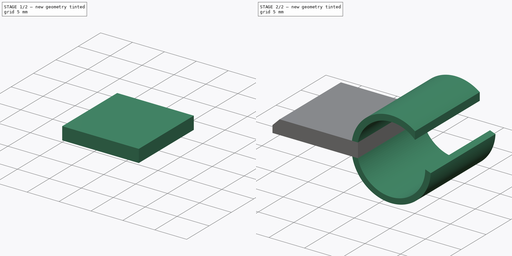
[diagram: build sequence overview — one tinted view per stage of 2, left to right]
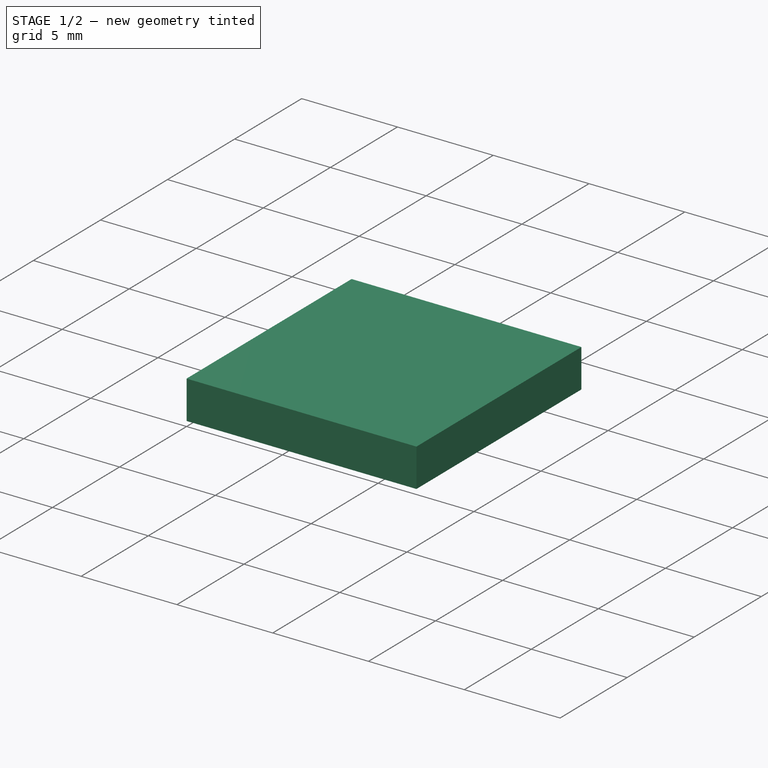
[diagram: stage 1 of 2 — iso view after this stage's code; geometry added in this stage tinted green]
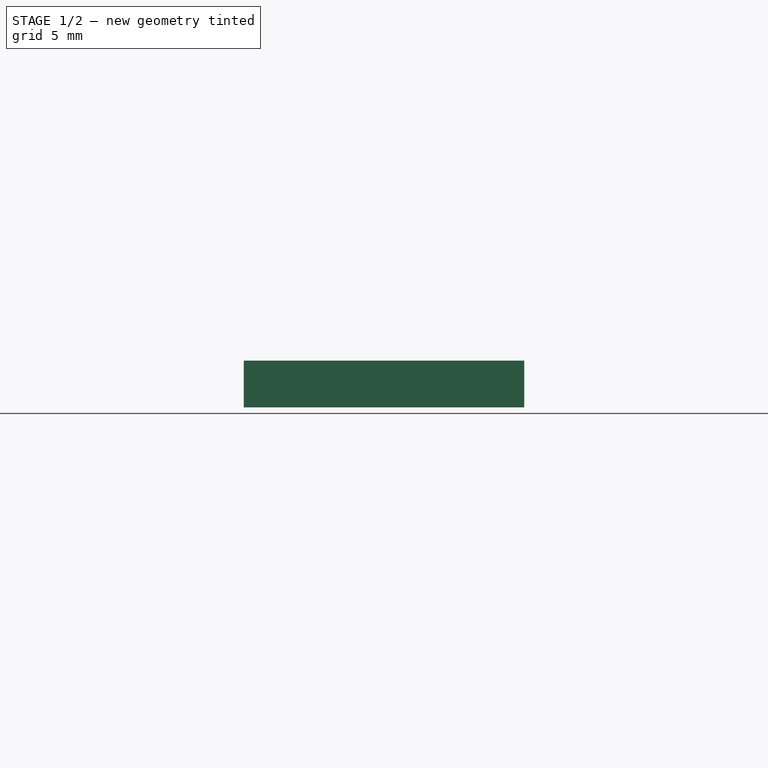
[diagram: stage 1 of 2 — front view after this stage's code; geometry added in this stage tinted green]
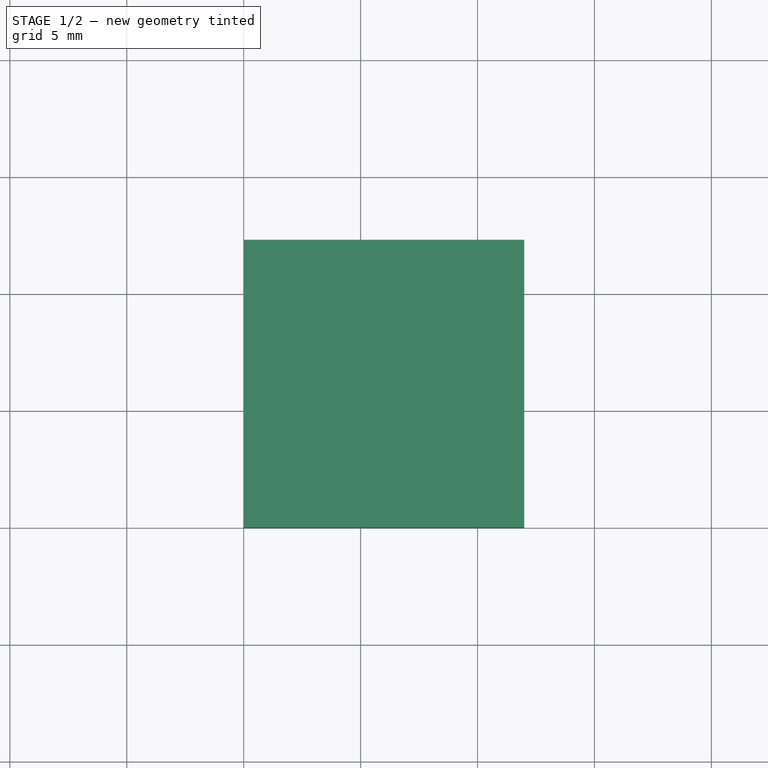
[diagram: stage 1 of 2 — top view after this stage's code; geometry added in this stage tinted green]
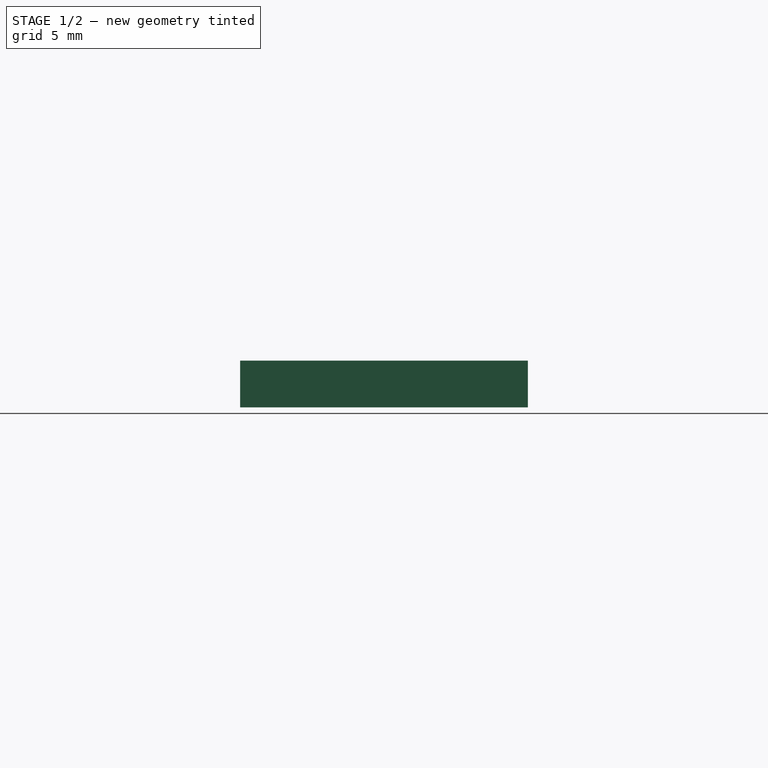
[diagram: stage 1 of 2 — right view after this stage's code; geometry added in this stage tinted green]
FCSTD DOCUMENT  (FreeCAD 0.19R24267 +99 (Git))
Label: PencilRack
License: All rights reserved
LicenseURL: http://en.wikipedia.org/wiki/All_rights_reserved
objects: Sketcher::SketchObject×3, PartDesign::Pad×2, PartDesign::Pocket×1, PartDesign::Chamfer×1, PartDesign::Body×1
note: 12 computed .brp shape members not serialized (recipe doc carries the construction recipe); baked Part::Feature solids carry a one-line shape summary decoded from their .brp

FEATURE [Sketcher::SketchObject] Sketch
  FullyConstrained = true
  MapMode = 5
  Support = -> [XY_Plane]
  sketch-geometry (4):
    g0: LineSegment StartX=0 StartY=0 StartZ=0 EndX=12 EndY=0 EndZ=0
    g1: LineSegment StartX=12 StartY=0 StartZ=0 EndX=12 EndY=12.3 EndZ=0
    g2: LineSegment StartX=12 StartY=12.3 StartZ=0 EndX=0 EndY=12.3 EndZ=0
    g3: LineSegment StartX=0 StartY=12.3 StartZ=0 EndX=0 EndY=0 EndZ=0
  constraints (11):
    c: Coincident(g0,g1)
    c: Coincident(g1,g2)
    c: Coincident(g2,g3)
    c: Coincident(g3,g0)
    c: Horizontal(g0)
    c: Horizontal(g2)
    c: Vertical(g1)
    c: Vertical(g3)
    c: Coincident(g0,g-1)
    c: Distance(g1) = 12.3
    c: Distance(g2) = 12
FEATURE [PartDesign::Pad] Pad
  Direction = (1,1,1)
  Length = 2
  Length2 = 100
  Profile = -> Sketch
  Type = 0
FEATURE [Sketcher::SketchObject] Sketch001
  ExternalGeometry = -> [Pad]
  FullyConstrained = true
  MapMode = 5
  Placement = pos=(0,0,0) rot=(1,0,0;3.14159rad)
  Support = -> [Pad]
  sketch-geometry (8):
    g0: LineSegment StartX=5.3 StartY=-1.9 StartZ=0 EndX=7.1 EndY=-1.9 EndZ=0
    g1: LineSegment StartX=7.1 StartY=-1.9 StartZ=0 EndX=7.1 EndY=-4.6 EndZ=0
    g2: LineSegment StartX=7.1 StartY=-4.6 StartZ=0 EndX=5.3 EndY=-4.6 EndZ=0
    g3: LineSegment StartX=5.3 StartY=-4.6 StartZ=0 EndX=5.3 EndY=-1.9 EndZ=0
    g4: LineSegment StartX=5.3 StartY=-7.7 StartZ=0 EndX=7.1 EndY=-7.7 EndZ=0
    g5: LineSegment StartX=7.1 StartY=-7.7 StartZ=0 EndX=7.1 EndY=-10.4 EndZ=0
    g6: LineSegment StartX=7.1 StartY=-10.4 StartZ=0 EndX=5.3 EndY=-10.4 EndZ=0
    g7: LineSegment StartX=5.3 StartY=-10.4 StartZ=0 EndX=5.3 EndY=-7.7 EndZ=0
  constraints (24):
    c: Coincident(g0,g1)
    c: Coincident(g1,g2)
    c: Coincident(g2,g3)
    c: Coincident(g3,g0)
    c: Horizontal(g0)
    c: Horizontal(g2)
    c: Vertical(g1)
    c: Vertical(g3)
    c: Coincident(g4,g5)
    c: Coincident(g5,g6)
    c: Coincident(g6,g7)
    c: Coincident(g7,g4)
    c: Horizontal(g4)
    c: Horizontal(g6)
    c: Vertical(g5)
    c: Vertical(g7)
    c: Distance(g0,g-2) = 5.3
    c: Distance(g0,g-1) = 1.9
    c: Vertical(g2,g4)
    c: Distance(g6,g-3) = 1.9
    c: Distance(g0) = 1.8
    c: Distance(g1) = 2.7
    c: Vertical(g1,g4)
    c: Equal(g1,g5)
FEATURE [PartDesign::Pocket] Pocket
  BaseFeature = -> Pad
  Length = 0.2
  Length2 = 100
  Profile = -> Sketch001
  Type = 0
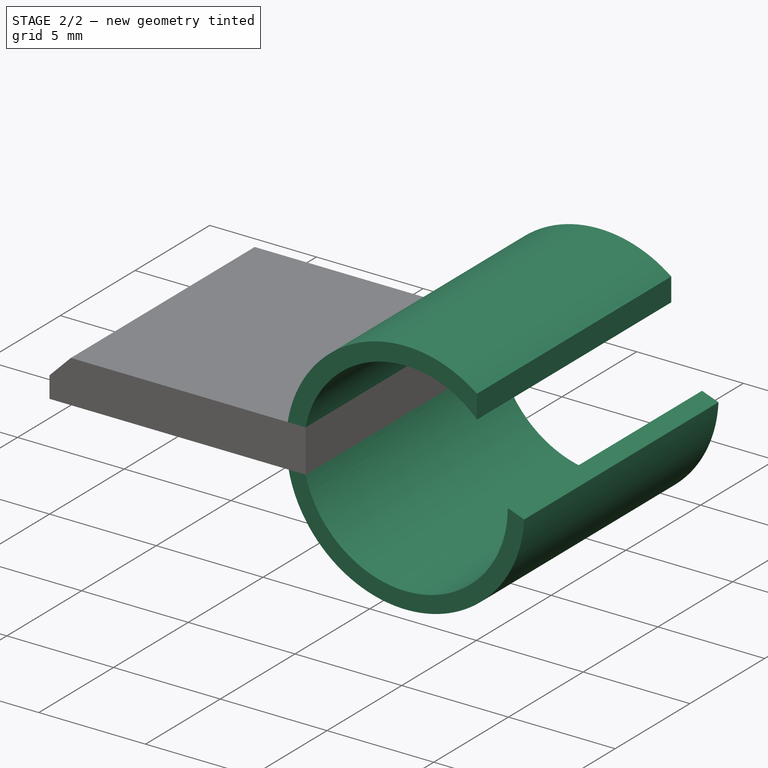
[diagram: stage 2 of 2 — iso view after this stage's code; geometry added in this stage tinted green]
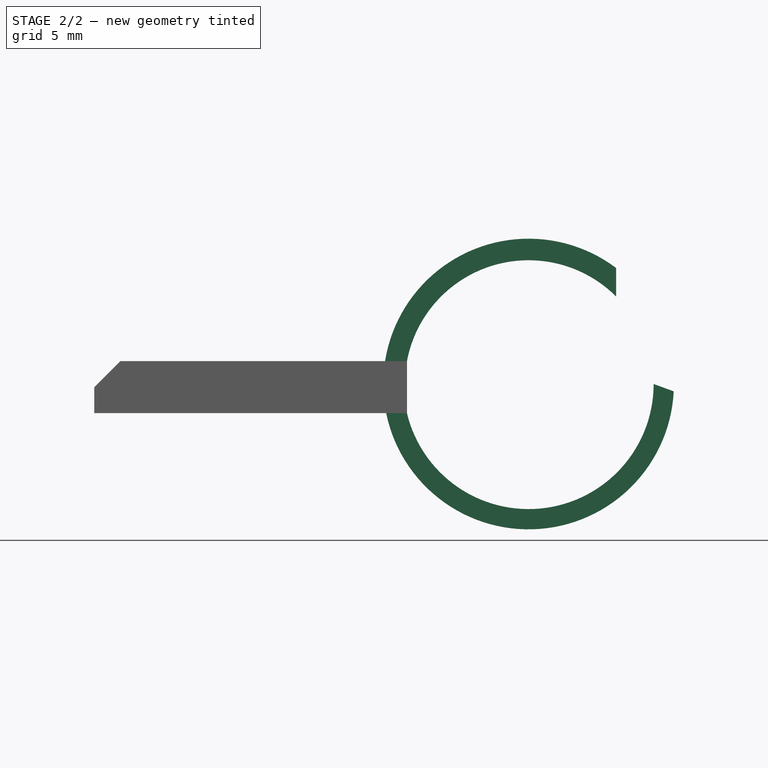
[diagram: stage 2 of 2 — front view after this stage's code; geometry added in this stage tinted green]
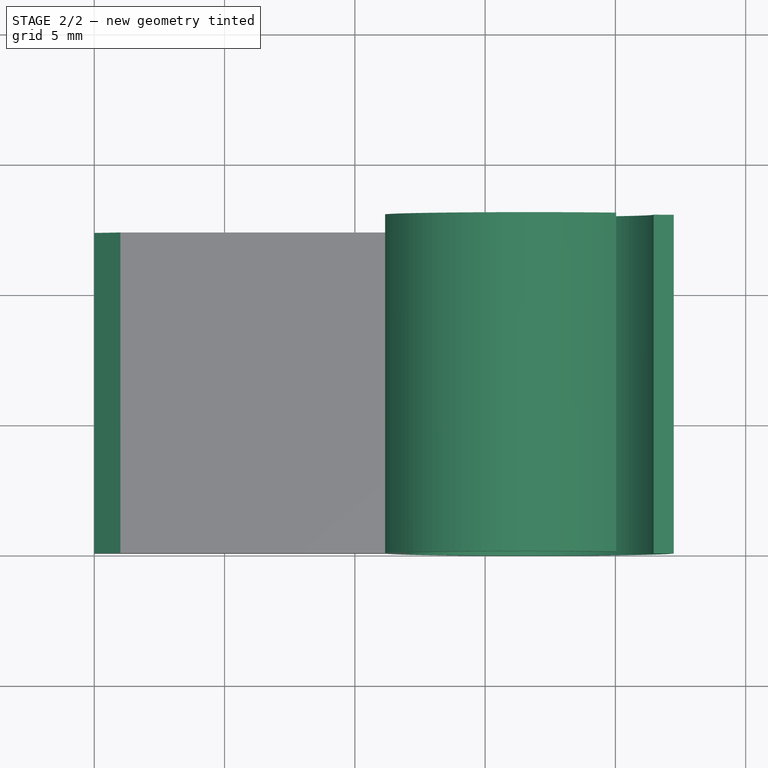
[diagram: stage 2 of 2 — top view after this stage's code; geometry added in this stage tinted green]
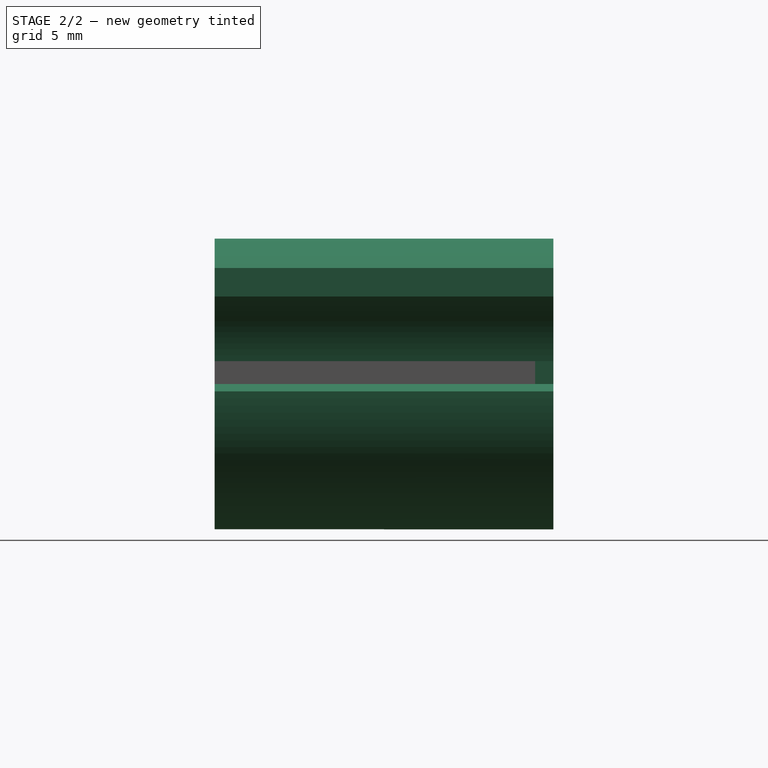
[diagram: stage 2 of 2 — right view after this stage's code; geometry added in this stage tinted green]
FEATURE [Sketcher::SketchObject] Sketch002
  ExternalGeometry = -> [Pocket]
  FullyConstrained = true
  MapMode = 5
  Placement = pos=(0,0,0) rot=(1,0,0;1.5708rad)
  Support = -> [Pocket]
  sketch-geometry (12):
    g0: ArcOfCircle CenterX=16.6677 CenterY=1.11938 CenterZ=0 NormalX=0 NormalY=0 NormalZ=1 AngleXU=0 Radius=5.57761 StartAngle=3.30014 EndAngle=6.23288
    g1: ArcOfCircle CenterX=16.6677 CenterY=1.11938 CenterZ=0 NormalX=0 NormalY=0 NormalZ=1 AngleXU=0 Radius=5.57761 StartAngle=0.924561 EndAngle=2.98304
    g2: ArcOfCircle CenterX=16.6677 CenterY=1.11938 CenterZ=0 NormalX=0 NormalY=0 NormalZ=1 AngleXU=0 Radius=4.8 StartAngle=3.37696 EndAngle=6.28319
    g3: LineSegment StartX=12 StartY=-9e-16 StartZ=0 EndX=16.6677 EndY=1.11938 EndZ=0
    g4: LineSegment StartX=16.6677 StartY=1.11938 StartZ=0 EndX=21.4677 EndY=1.11938 EndZ=0
    g5: LineSegment StartX=21.4677 StartY=1.11938 StartZ=0 EndX=22.2382 EndY=0.838915 EndZ=0
    g6: ArcOfCircle CenterX=16.6677 CenterY=1.11938 CenterZ=0 NormalX=0 NormalY=0 NormalZ=1 AngleXU=0 Radius=4.75 StartAngle=0.785398 EndAngle=2.95512
    g7: LineSegment StartX=12 StartY=2 StartZ=0 EndX=16.6677 EndY=1.11938 EndZ=0
    g8: LineSegment StartX=16.6677 StartY=1.11938 StartZ=0 EndX=20.0264 EndY=4.47813 EndZ=0
    g9: LineSegment StartX=20.0264 StartY=4.47813 StartZ=0 EndX=20.0264 EndY=5.5723 EndZ=0
    g10: LineSegment StartX=11.16 StartY=2 StartZ=0 EndX=11.16 EndY=0.23875 EndZ=0
    g11: LineSegment StartX=12 StartY=2 StartZ=0 EndX=12 EndY=-9e-16 EndZ=0
  constraints (31):
    c: Equal(g0,g1)
    c: Coincident(g0,g1)
    c: Coincident(g2,g0)
    c: Coincident(g3,g0)
    c: Coincident(g4,g0)
    c: Coincident(g4,g2)
    c: Diameter(g2) = 9.6
    c: Coincident(g5,g2)
    c: Coincident(g5,g0)
    c: Coincident(g6,g0)
    c: Coincident(g7,g0)
    c: Coincident(g8,g0)
    c: Coincident(g8,g6)
    c: Coincident(g9,g6)
    c: Coincident(g9,g1)
    c: Angle(g9,g8) = 2.35619
    c: Coincident(g6,g7)
    c: Coincident(g2,g3)
    c: Diameter(g6) = 9.5
    c: Coincident(g6,g-3)
    c: Coincident(g-3,g2)
    c: Horizontal(g4)
    c: Vertical(g9)
    c: Angle(g5,g4,g2) = 0.349066
    c: Coincident(g10,g1)
    c: Coincident(g10,g0)
    c: Vertical(g10)
    c: Coincident(g11,g6)
    c: Coincident(g11,g2)
    c: Distance(g1,g6) = 0.84
    c: Horizontal(g1,g6)
FEATURE [PartDesign::Pad] Pad001
  BaseFeature = -> Pocket
  Direction = (1,1,1)
  Length = 13
  Length2 = 100
  Profile = -> Sketch002
  Reversed = true
  Type = 0
FEATURE [PartDesign::Chamfer] Chamfer
  Angle = 45
  Base = -> Pad001 [Edge20]
  BaseFeature = -> Pad001
  ChamferType = 0
  FlipDirection = false
  Size = 1
  Size2 = 1
  SupportTransform = false
FEATURE [PartDesign::Body] Body
  Group = -> [Sketch,Pad,Sketch001,Pocket,Sketch002,Pad001,Chamfer]
  Origin = -> Origin
  Tip = -> Chamfer
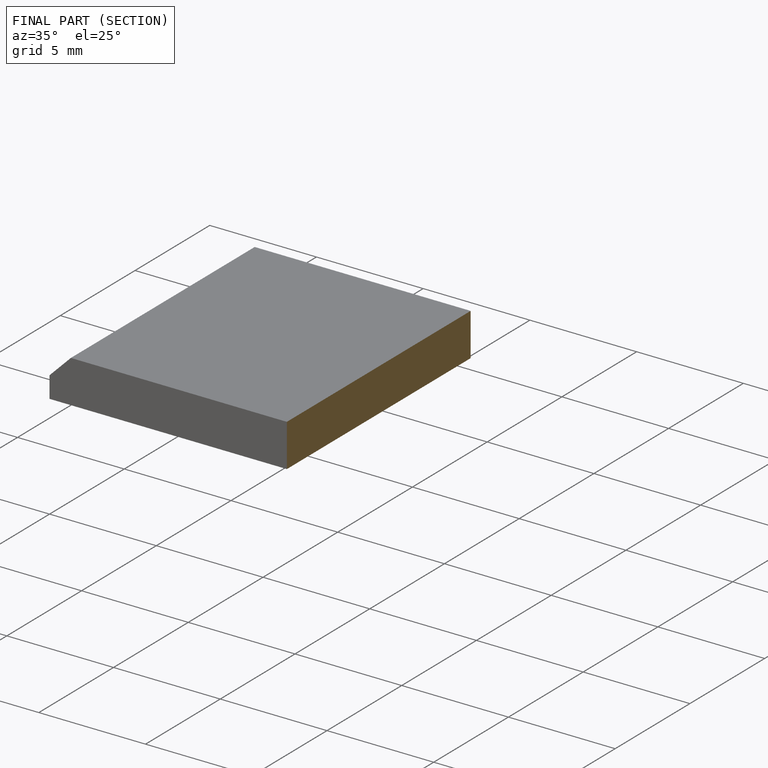
[diagram: finished part — half-section view (interior)]
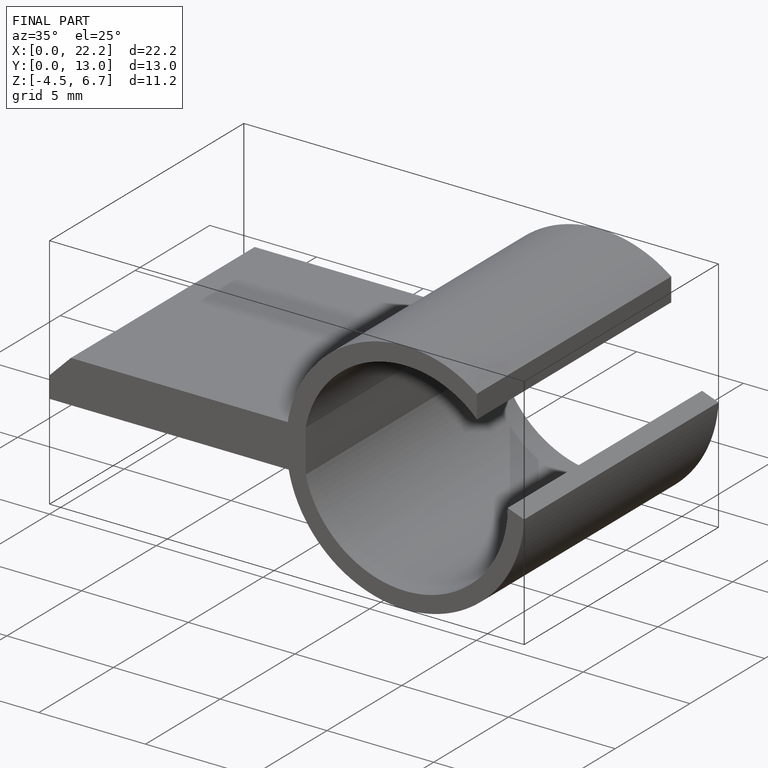
[diagram: finished part — iso view with bounding-box wireframe]
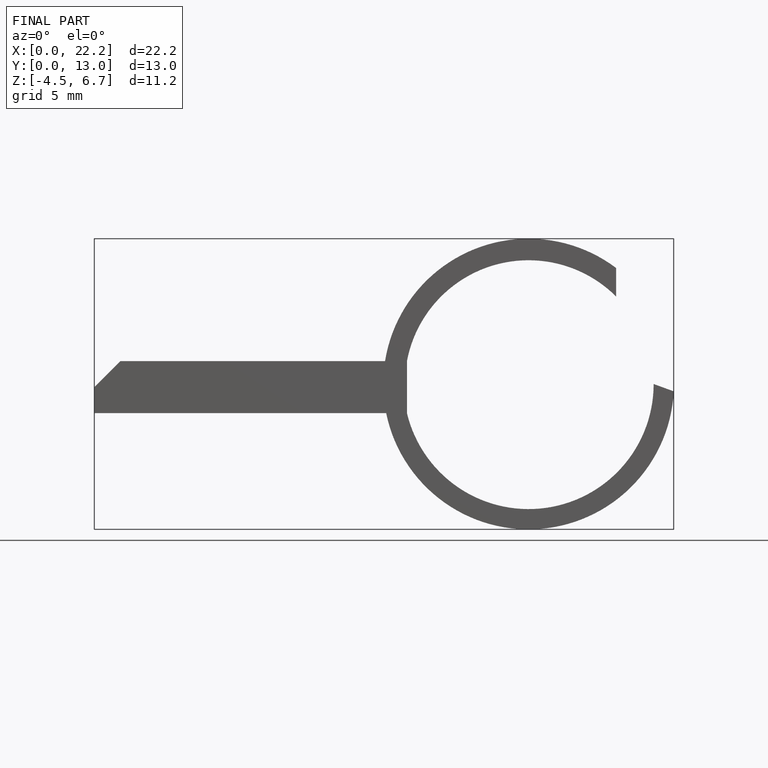
[diagram: finished part — front view with bounding-box wireframe]
